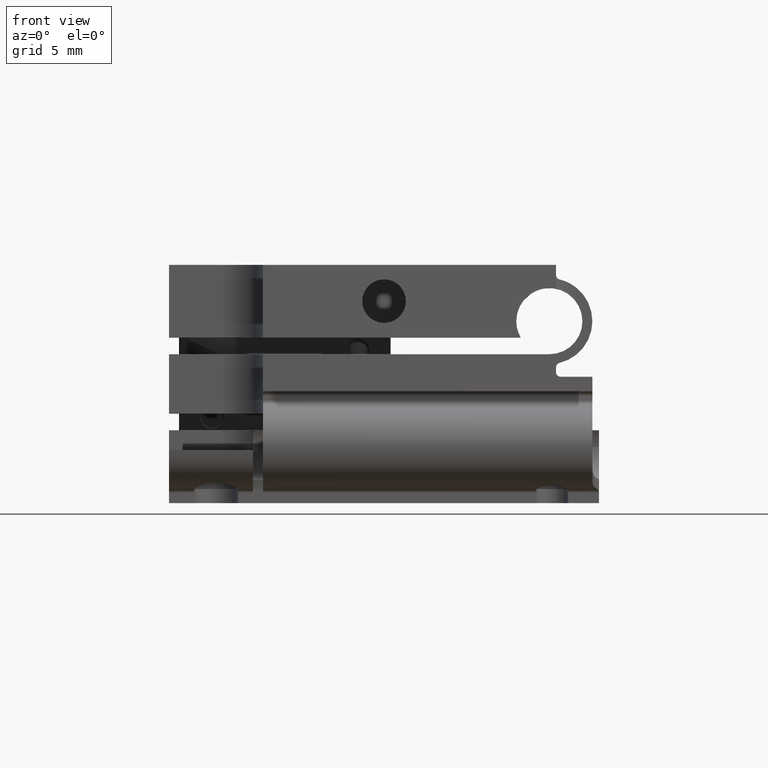
[diagram: clean part render]
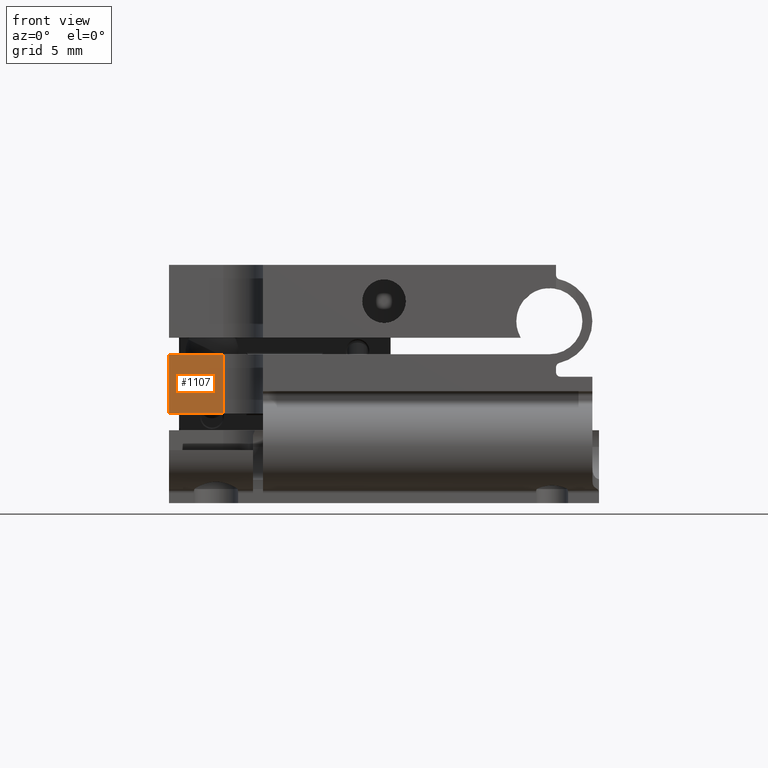
[diagram: same view with one face highlighted and labeled with its STEP entity id]
A machine part, front view. The second image highlights one B-rep face of the part: STEP entity #1107.
In plain terms, the highlighted planar face has unit normal (0, 1, -0).
Its self-contained STEP definition (entity closure, byte-faithful):
#610 = LINE ( 'NONE', #4476, #6594 ) ;
#761 = DIRECTION ( 'NONE',  ( -1.692413147294458000E-15, 0.000000000000000000, 1.000000000000000000 ) ) ;
#938 = CARTESIAN_POINT ( 'NONE',  ( 9.150000000000002132, -15.04091629284897813, 12.15000000000003233 ) ) ;
#1107 = ADVANCED_FACE ( 'NONE', ( #6025 ), #12131, .F. ) ;
#1486 = EDGE_CURVE ( 'NONE', #3234, #7857, #1893, .T. ) ;
#1893 = LINE ( 'NONE', #6007, #10745 ) ;
#1923 = CARTESIAN_POINT ( 'NONE',  ( 9.149999999999995026, 2.249999999999993339, 16.25000000000000355 ) ) ;
#2697 = DIRECTION ( 'NONE',  ( -0.000000000000000000, 1.000000000000000000, -0.000000000000000000 ) ) ;
#3234 = VERTEX_POINT ( 'NONE', #11811 ) ;
#3318 = ORIENTED_EDGE ( 'NONE', *, *, #3934, .F. ) ;
#3357 = VERTEX_POINT ( 'NONE', #12280 ) ;
#3934 = EDGE_CURVE ( 'NONE', #7857, #3357, #12817, .T. ) ;
#4476 = CARTESIAN_POINT ( 'NONE',  ( 9.149999999999995026, -2.249999999999999556, 16.24999999999998934 ) ) ;
#5477 = ORIENTED_EDGE ( 'NONE', *, *, #6227, .F. ) ;
#6007 = CARTESIAN_POINT ( 'NONE',  ( 9.149999999999995026, -15.04091629284897813, 16.25000000000000355 ) ) ;
#6025 = FACE_OUTER_BOUND ( 'NONE', #6703, .T. ) ;
#6156 = CARTESIAN_POINT ( 'NONE',  ( 9.150000000000002132, -15.04091629284897813, 12.15000000000003233 ) ) ;
#6180 = CARTESIAN_POINT ( 'NONE',  ( 9.150000000000002132, -2.250000000000003553, 12.15000000000003233 ) ) ;
#6227 = EDGE_CURVE ( 'NONE', #9551, #3234, #610, .T. ) ;
#6555 = DIRECTION ( 'NONE',  ( -1.692413147294458000E-15, 0.000000000000000000, 1.000000000000000000 ) ) ;
#6594 = VECTOR ( 'NONE', #6555, 1000.000000000000000 ) ;
#6703 = EDGE_LOOP ( 'NONE', ( #6836, #5477, #13156, #3318 ) ) ;
#6836 = ORIENTED_EDGE ( 'NONE', *, *, #1486, .F. ) ;
#7296 = EDGE_CURVE ( 'NONE', #9551, #3357, #10164, .T. ) ;
#7857 = VERTEX_POINT ( 'NONE', #1923 ) ;
#8858 = DIRECTION ( 'NONE',  ( 1.692413147294458000E-15, 0.000000000000000000, -1.000000000000000000 ) ) ;
#9169 = DIRECTION ( 'NONE',  ( -1.000000000000000000, 0.000000000000000000, -1.692413147294458000E-15 ) ) ;
#9551 = VERTEX_POINT ( 'NONE', #6180 ) ;
#9670 = AXIS2_PLACEMENT_3D ( 'NONE', #6156, #9169, #761 ) ;
#10164 = LINE ( 'NONE', #938, #12662 ) ;
#10174 = DIRECTION ( 'NONE',  ( -0.000000000000000000, 1.000000000000000000, -0.000000000000000000 ) ) ;
#10745 = VECTOR ( 'NONE', #10174, 1000.000000000000000 ) ;
#10870 = CARTESIAN_POINT ( 'NONE',  ( 9.150000000000042988, 2.249999999999998668, -12.50000000000002487 ) ) ;
#11239 = VECTOR ( 'NONE', #8858, 1000.000000000000000 ) ;
#11811 = CARTESIAN_POINT ( 'NONE',  ( 9.149999999999995026, -2.250000000000003553, 16.25000000000000355 ) ) ;
#12131 = PLANE ( 'NONE',  #9670 ) ;
#12280 = CARTESIAN_POINT ( 'NONE',  ( 9.150000000000002132, 2.249999999999993339, 12.15000000000003233 ) ) ;
#12662 = VECTOR ( 'NONE', #2697, 1000.000000000000000 ) ;
#12817 = LINE ( 'NONE', #10870, #11239 ) ;
#13156 = ORIENTED_EDGE ( 'NONE', *, *, #7296, .T. ) ;